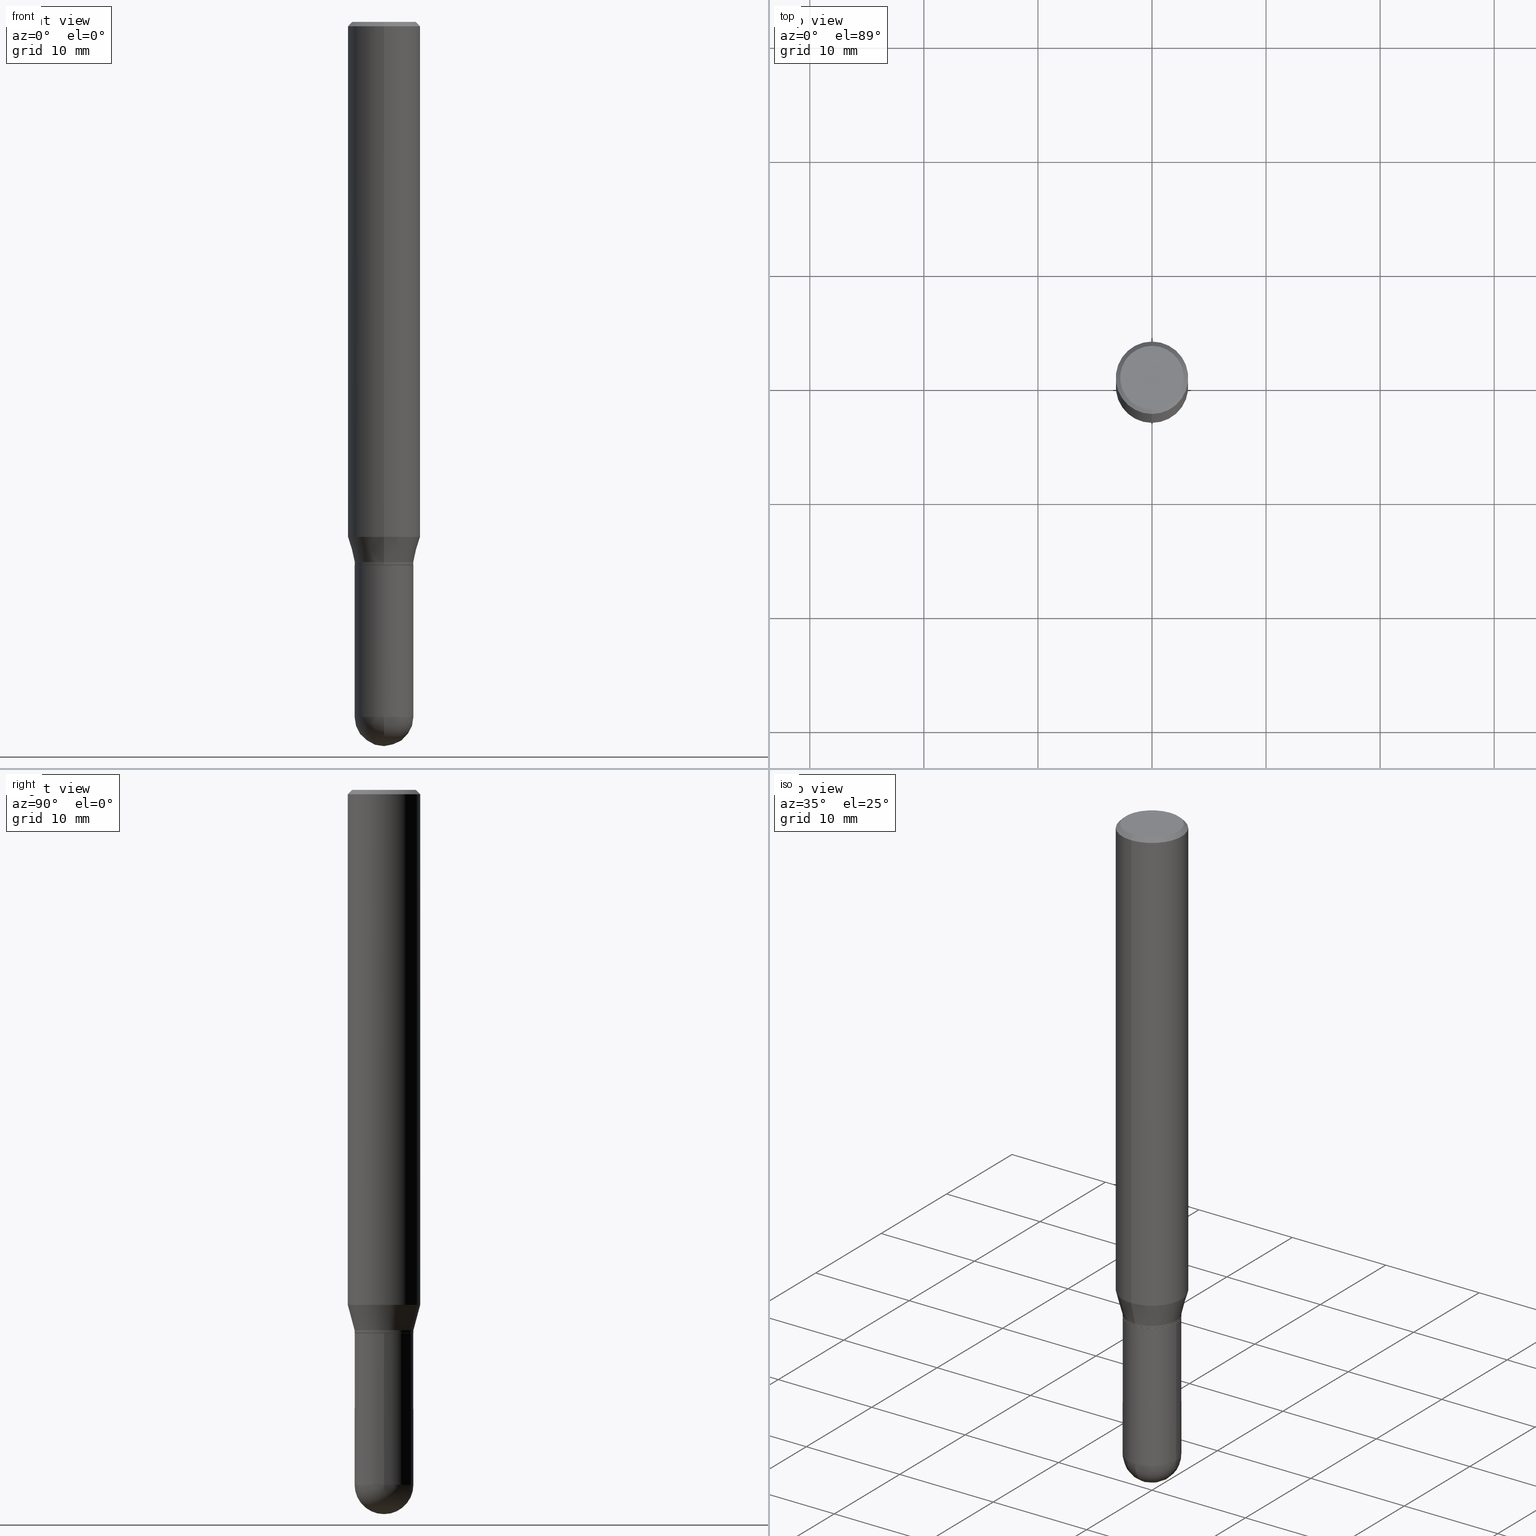
[diagram: canonical four-view strip — front | top / right | iso, engineering-drawing reading convention]
A machine part, canonical four-view strip (front | top / right | iso — engineering-drawing reading convention). The complete STEP part file that produces these views, byte-faithful:
ISO-10303-21;
HEADER;
FILE_DESCRIPTION (( 'STEP AP203' ),
    '1' );
FILE_NAME ('39326.STEP',
    '2024-03-08T12:48:15',
    ( '' ),
    ( '' ),
    'SwSTEP 2.0',
    'SolidWorks 2023',
    '' );
FILE_SCHEMA (( 'CONFIG_CONTROL_DESIGN' ));
ENDSEC;

DATA;
#1 = CARTESIAN_POINT ( 'NONE',  ( -8.575622497214409523E-16, -0.1250000000000000555, -0.01499999999999948597 ) ) ;
#2 = ORIENTED_EDGE ( 'NONE', *, *, #290, .T. ) ;
#3 = DATE_AND_TIME ( #47, #27 ) ;
#4 = ORIENTED_EDGE ( 'NONE', *, *, #400, .T. ) ;
#5 = EDGE_CURVE ( 'NONE', #357, #435, #132, .T. ) ;
#6 = AXIS2_PLACEMENT_3D ( 'NONE', #36, #240, #394 ) ;
#7 = DESIGN_CONTEXT ( 'detailed design', #423, 'design' ) ;
#8 = EDGE_LOOP ( 'NONE', ( #118, #292, #285, #252 ) ) ;
#9 = CARTESIAN_POINT ( 'NONE',  ( 3.667932737261522064E-31, -5.237609339586149413E-17, -0.01499999999999992312 ) ) ;
#10 = COORDINATED_UNIVERSAL_TIME_OFFSET ( 5, 0, .BEHIND. ) ;
#11 = ORIENTED_EDGE ( 'NONE', *, *, #414, .T. ) ;
#12 = LINE ( 'NONE', #492, #318 ) ;
#13 = CYLINDRICAL_SURFACE ( 'NONE', #158, 0.1015499999999999875 ) ;
#14 = CARTESIAN_POINT ( 'NONE',  ( 5.899408758987094508E-29, -8.325347365436315775E-15, -2.398450000000000415 ) ) ;
#15 = AXIS2_PLACEMENT_3D ( 'NONE', #293, #144, #378 ) ;
#16 = EDGE_LOOP ( 'NONE', ( #81, #329 ) ) ;
#17 = CARTESIAN_POINT ( 'NONE',  ( 0.1015500000000000708, -7.255647370249939489E-15, -1.875000000000000000 ) ) ;
#18 = PLANE ( 'NONE',  #150 ) ;
#19 = LINE ( 'NONE', #177, #69 ) ;
#20 = CARTESIAN_POINT ( 'NONE',  ( 6.152088223088502938E-29, -8.673689151273167162E-15, -2.500000000000000000 ) ) ;
#21 = CARTESIAN_POINT ( 'NONE',  ( 7.197797913250275462E-16, 0.1010499999999935339, -1.875000000000000444 ) ) ;
#22 = EDGE_CURVE ( 'NONE', #301, #316, #102, .T. ) ;
#23 = MANIFOLD_SOLID_BREP ( 'Body-Move/Copy2[1]', #509 ) ;
#24 = AXIS2_PLACEMENT_3D ( 'NONE', #258, #336, #454 ) ;
#25 = AXIS2_PLACEMENT_3D ( 'NONE', #418, #187, #182 ) ;
#26 = CARTESIAN_POINT ( 'NONE',  ( 4.346459722803774281E-29, -6.206509134430983691E-15, -1.777483408562510192 ) ) ;
#27 = LOCAL_TIME ( 7, 48, 15.00000000000000000, #165 ) ;
#28 =( CONVERSION_BASED_UNIT ( 'INCH', #374 ) LENGTH_UNIT ( ) NAMED_UNIT ( #113 ) );
#29 = DIRECTION ( 'NONE',  ( -6.982962677686266711E-15, -1.000000000000000000, 2.690150658458161914E-15 ) ) ;
#30 = ADVANCED_FACE ( 'NONE', ( #410 ), #13, .T. ) ;
#31 = CARTESIAN_POINT ( 'NONE',  ( 4.583693277331172338E-29, -6.545265804702859686E-15, -1.874500000000000277 ) ) ;
#32 = MANIFOLD_SOLID_BREP ( 'Body-Move/Copy2[2]', #431 ) ;
#33 = CC_DESIGN_DATE_AND_TIME_ASSIGNMENT ( #93, #496, ( #387 ) ) ;
#34 = VERTEX_POINT ( 'NONE', #138 ) ;
#35 = AXIS2_PLACEMENT_3D ( 'NONE', #446, #266, #56 ) ;
#36 = CARTESIAN_POINT ( 'NONE',  ( -1.856216302434962470E-45, 2.650576370488182261E-31, 7.590991037995984833E-17 ) ) ;
#37 = ORIENTED_EDGE ( 'NONE', *, *, #22, .F. ) ;
#38 = VERTEX_POINT ( 'NONE', #451 ) ;
#39 = LINE ( 'NONE', #88, #469 ) ;
#40 = EDGE_CURVE ( 'NONE', #481, #357, #277, .T. ) ;
#41 = PERSON_AND_ORGANIZATION_ROLE ( 'design_owner' ) ;
#42 = SPHERICAL_SURFACE ( 'NONE', #433, 0.1015499999999999736 ) ;
#43 = ORIENTED_EDGE ( 'NONE', *, *, #466, .T. ) ;
#44 = APPROVAL_ROLE ( '' ) ;
#45 = CARTESIAN_POINT ( 'NONE',  ( 4.584915921576925907E-29, -6.547011674482721378E-15, -1.875000000000000000 ) ) ;
#46 = EDGE_LOOP ( 'NONE', ( #333, #221, #508, #468 ) ) ;
#47 = CALENDAR_DATE ( 2024, 8, 3 ) ;
#48 = EDGE_CURVE ( 'NONE', #174, #491, #271, .T. ) ;
#49 = ORIENTED_EDGE ( 'NONE', *, *, #104, .F. ) ;
#50 = ORIENTED_EDGE ( 'NONE', *, *, #500, .T. ) ;
#51 = DIRECTION ( 'NONE',  ( 4.937700262164543309E-15, 0.7071067811865444641, -0.7071067811865505703 ) ) ;
#52 = CIRCLE ( 'NONE', #160, 0.1015499999999999875 ) ;
#53 = CARTESIAN_POINT ( 'NONE',  ( 0.000000000000000000, 0.000000000000000000, 0.000000000000000000 ) ) ;
#54 = APPROVAL_PERSON_ORGANIZATION ( #438, #480, #44 ) ;
#55 = ORIENTED_EDGE ( 'NONE', *, *, #193, .F. ) ;
#56 = DIRECTION ( 'NONE',  ( 1.000000000000000000, -6.982962677686269866E-15, 0.000000000000000000 ) ) ;
#57 = ADVANCED_FACE ( 'NONE', ( #100 ), #479, .T. ) ;
#58 = ORIENTED_EDGE ( 'NONE', *, *, #489, .T. ) ;
#59 = ORIENTED_EDGE ( 'NONE', *, *, #78, .T. ) ;
#60 = DIRECTION ( 'NONE',  ( -6.982962677686265922E-15, -1.000000000000000000, 2.703461646377299523E-15 ) ) ;
#61 = AXIS2_PLACEMENT_3D ( 'NONE', #420, #303, #456 ) ;
#62 = CIRCLE ( 'NONE', #499, 0.1015499999999999736 ) ;
#63 = DIRECTION ( 'NONE',  ( 1.000000000000000000, -6.982962677686266711E-15, 4.876176775795936353E-29 ) ) ;
#64 = DIRECTION ( 'NONE',  ( -1.000000000000000000, 7.105427357601001070E-15, -4.926315508542082329E-29 ) ) ;
#65 = PRODUCT_DEFINITION ( 'UNKNOWN', '', #238, #7 ) ;
#66 = DIRECTION ( 'NONE',  ( 1.000000000000000000, -6.982962677686258033E-15, 0.000000000000000000 ) ) ;
#67 = APPROVAL_ROLE ( '' ) ;
#68 = DIRECTION ( 'NONE',  ( 2.445288491507693556E-29, -3.491739559724117490E-15, -1.000000000000000000 ) ) ;
#69 = VECTOR ( 'NONE', #384, 39.37007874015748143 ) ;
#70 = CARTESIAN_POINT ( 'NONE',  ( 8.881784197001684225E-16, 0.1249999999999937828, -1.777483408562510858 ) ) ;
#71 = DIRECTION ( 'NONE',  ( 6.982962677686265922E-15, 1.000000000000000000, -3.500180241882337261E-15 ) ) ;
#72 = APPLICATION_PROTOCOL_DEFINITION ( 'international standard', 'config_control_design', 1994, #227 ) ;
#73 = CC_DESIGN_PERSON_AND_ORGANIZATION_ASSIGNMENT ( #447, #264, ( #238 ) ) ;
#74 = FACE_OUTER_BOUND ( 'NONE', #355, .T. ) ;
#75 = VERTEX_POINT ( 'NONE', #20 ) ;
#76 = DIRECTION ( 'NONE',  ( -6.982962677686265922E-15, -1.000000000000000000, 2.703461646377299523E-15 ) ) ;
#77 = ORIENTED_EDGE ( 'NONE', *, *, #462, .T. ) ;
#78 = EDGE_CURVE ( 'NONE', #408, #157, #91, .T. ) ;
#79 = PERSON_AND_ORGANIZATION_ROLE ( 'creator' ) ;
#80 = ORIENTED_EDGE ( 'NONE', *, *, #215, .F. ) ;
#81 = ORIENTED_EDGE ( 'NONE', *, *, #242, .T. ) ;
#82 = CIRCLE ( 'NONE', #15, 0.1250000000000000000 ) ;
#83 = CALENDAR_DATE ( 2024, 8, 3 ) ;
#84 = ADVANCED_FACE ( 'NONE', ( #349 ), #107, .T. ) ;
#85 = VERTEX_POINT ( 'NONE', #149 ) ;
#86 = CC_DESIGN_PERSON_AND_ORGANIZATION_ASSIGNMENT ( #134, #185, ( #387 ) ) ;
#87 = DIRECTION ( 'NONE',  ( -6.982962677686265922E-15, -1.000000000000000000, 2.703461646377299523E-15 ) ) ;
#88 = CARTESIAN_POINT ( 'NONE',  ( 8.728703347107836346E-16, 0.1249999999999999445, -0.01500000000000036027 ) ) ;
#89 = ORIENTED_EDGE ( 'NONE', *, *, #326, .T. ) ;
#90 = DIRECTION ( 'NONE',  ( -2.445288491507693836E-29, 3.491739559724117490E-15, 1.000000000000000000 ) ) ;
#91 = CIRCLE ( 'NONE', #486, 0.1015499999999999875 ) ;
#92 = CIRCLE ( 'NONE', #263, 0.1015500000000000708 ) ;
#93 = DATE_AND_TIME ( #338, #440 ) ;
#94 = CC_DESIGN_APPROVAL ( #419, ( #238 ) ) ;
#95 = CARTESIAN_POINT ( 'NONE',  ( 7.180034344856274914E-16, 0.1010499999999935339, -1.875000000000000444 ) ) ;
#96 = CARTESIAN_POINT ( 'NONE',  ( 7.215561481644268122E-16, 0.1015499999999933678, -1.874500000000000499 ) ) ;
#97 = ADVANCED_FACE ( 'NONE', ( #503 ), #461, .T. ) ;
#98 = DIRECTION ( 'NONE',  ( -2.445288491507693836E-29, 3.491739559724117490E-15, 1.000000000000000000 ) ) ;
#99 = CARTESIAN_POINT ( 'NONE',  ( 0.1015500000000000708, -7.091198599190408807E-16, 4.951757515820776576E-30 ) ) ;
#100 = FACE_OUTER_BOUND ( 'NONE', #430, .T. ) ;
#101 = CARTESIAN_POINT ( 'NONE',  ( 4.346459722803774281E-29, -6.206509134430983691E-15, -1.777483408562510192 ) ) ;
#102 = CIRCLE ( 'NONE', #251, 0.1015500000000000985 ) ;
#103 = AXIS2_PLACEMENT_3D ( 'NONE', #101, #90, #184 ) ;
#104 = EDGE_CURVE ( 'NONE', #435, #85, #110, .T. ) ;
#105 = CARTESIAN_POINT ( 'NONE',  ( -0.1015500000000000708, 7.215561481643822416E-16, -4.995178584153860605E-30 ) ) ;
#106 = DIRECTION ( 'NONE',  ( 1.000000000000000000, -6.982962677686265922E-15, 4.883557194083112340E-29 ) ) ;
#107 = CYLINDRICAL_SURFACE ( 'NONE', #332, 0.1015499999999999875 ) ;
#108 = DIRECTION ( 'NONE',  ( -2.445468806185136597E-29, 3.491481338843145583E-15, 1.000000000000000000 ) ) ;
#109 = EDGE_CURVE ( 'NONE', #38, #161, #311, .T. ) ;
#110 = CIRCLE ( 'NONE', #117, 0.1015499999999999875 ) ;
#111 = VECTOR ( 'NONE', #275, 39.37007874015748143 ) ;
#112 = DIRECTION ( 'NONE',  ( -2.445468806185136597E-29, 3.491481338843145583E-15, 1.000000000000000000 ) ) ;
#113 = DIMENSIONAL_EXPONENTS ( 1.000000000000000000, 0.000000000000000000, 0.000000000000000000, 0.000000000000000000, 0.000000000000000000, 0.000000000000000000, 0.000000000000000000 ) ;
#114 = LINE ( 'NONE', #156, #457 ) ;
#115 = CARTESIAN_POINT ( 'NONE',  ( -0.1015500000000000708, -6.738779315575238500E-15, -1.875000000000000000 ) ) ;
#116 = EDGE_CURVE ( 'NONE', #85, #408, #190, .T. ) ;
#117 = AXIS2_PLACEMENT_3D ( 'NONE', #31, #380, #385 ) ;
#118 = ORIENTED_EDGE ( 'NONE', *, *, #462, .F. ) ;
#119 = AXIS2_PLACEMENT_3D ( 'NONE', #53, #216, #286 ) ;
#120 = PERSON_AND_ORGANIZATION ( #494, #426 ) ;
#121 = DIRECTION ( 'NONE',  ( -2.445288491507693836E-29, 3.491739559724117490E-15, 1.000000000000000000 ) ) ;
#122 = ORIENTED_EDGE ( 'NONE', *, *, #363, .F. ) ;
#123 = CARTESIAN_POINT ( 'NONE',  ( 4.560463036661848921E-29, -6.512094278885478870E-15, -1.864999999999999991 ) ) ;
#124 = EDGE_LOOP ( 'NONE', ( #364, #392, #126, #239 ) ) ;
#125 = ADVANCED_FACE ( 'NONE', ( #273 ), #502, .F. ) ;
#126 = ORIENTED_EDGE ( 'NONE', *, *, #388, .F. ) ;
#127 = CIRCLE ( 'NONE', #287, 0.1015499999999999875 ) ;
#128 = ORIENTED_EDGE ( 'NONE', *, *, #388, .T. ) ;
#129 = ORIENTED_EDGE ( 'NONE', *, *, #48, .F. ) ;
#130 = CARTESIAN_POINT ( 'NONE',  ( 5.899408758987094508E-29, -8.325347365436315775E-15, -2.398450000000000415 ) ) ;
#131 = ADVANCED_FACE ( 'NONE', ( #465 ), #346, .T. ) ;
#132 = LINE ( 'NONE', #95, #358 ) ;
#133 = CIRCLE ( 'NONE', #399, 0.1015500000000000985 ) ;
#134 = PERSON_AND_ORGANIZATION ( #494, #426 ) ;
#135 = CC_DESIGN_APPROVAL ( #480, ( #65 ) ) ;
#136 = DIRECTION ( 'NONE',  ( -2.445468806185136597E-29, 3.491481338843145583E-15, 1.000000000000000000 ) ) ;
#137 = DIRECTION ( 'NONE',  ( 1.000000000000000000, -6.982962677686269866E-15, 0.000000000000000000 ) ) ;
#138 = CARTESIAN_POINT ( 'NONE',  ( 8.881784197001688169E-16, 0.1249999999999999306, -0.01500000000000036027 ) ) ;
#139 = FACE_OUTER_BOUND ( 'NONE', #315, .T. ) ;
#140 = DIRECTION ( 'NONE',  ( -6.982962677686266711E-15, -1.000000000000000000, 2.690150658458161914E-15 ) ) ;
#141 = EDGE_CURVE ( 'NONE', #199, #206, #225, .T. ) ;
#142 = UNCERTAINTY_MEASURE_WITH_UNIT (LENGTH_MEASURE( 1.000000000000000082E-05 ), #28, 'distance_accuracy_value', 'NONE');
#143 = CARTESIAN_POINT ( 'NONE',  ( -7.056283785801518238E-16, -0.1010500000000066068, -1.874999999999999778 ) ) ;
#144 = DIRECTION ( 'NONE',  ( -2.445288491507693836E-29, 3.491739559724117490E-15, 1.000000000000000000 ) ) ;
#145 = SECURITY_CLASSIFICATION_LEVEL ( 'unclassified' ) ;
#146 = CIRCLE ( 'NONE', #6, 0.1100000000000000283 ) ;
#147 = CARTESIAN_POINT ( 'NONE',  ( 7.681258945454894762E-16, 0.1100000000000000283, -3.461363963796731015E-16 ) ) ;
#148 = CARTESIAN_POINT ( 'NONE',  ( 8.048672839322978639E-16, 0.1015499999999934788, -1.865000000000000213 ) ) ;
#149 = CARTESIAN_POINT ( 'NONE',  ( -7.091198599189950281E-16, -0.1015500000000066211, -1.874499999999999833 ) ) ;
#150 = AXIS2_PLACEMENT_3D ( 'NONE', #147, #68, #343 ) ;
#151 = DIRECTION ( 'NONE',  ( -2.445288491507693556E-29, 3.491739559724117490E-15, 1.000000000000000000 ) ) ;
#152 = VECTOR ( 'NONE', #409, 39.37007874015748143 ) ;
#153 = DIRECTION ( 'NONE',  ( 6.982962677686266711E-15, 1.000000000000000000, -2.690150658458162309E-15 ) ) ;
#154 = ORIENTED_EDGE ( 'NONE', *, *, #193, .T. ) ;
#155 = ADVANCED_FACE ( 'NONE', ( #415 ), #18, .F. ) ;
#156 = CARTESIAN_POINT ( 'NONE',  ( 8.881784197001251337E-16, 0.1250000000000000000, -4.364674449655146862E-16 ) ) ;
#157 = VERTEX_POINT ( 'NONE', #148 ) ;
#158 = AXIS2_PLACEMENT_3D ( 'NONE', #365, #180, #298 ) ;
#159 = FACE_OUTER_BOUND ( 'NONE', #370, .T. ) ;
#160 = AXIS2_PLACEMENT_3D ( 'NONE', #267, #424, #362 ) ;
#161 = VERTEX_POINT ( 'NONE', #70 ) ;
#162 = EDGE_CURVE ( 'NONE', #157, #161, #234, .T. ) ;
#163 = ORIENTED_EDGE ( 'NONE', *, *, #356, .F. ) ;
#164 = DIRECTION ( 'NONE',  ( -6.982962677686266711E-15, -1.000000000000000000, 2.690150658458161914E-15 ) ) ;
#165 = COORDINATED_UNIVERSAL_TIME_OFFSET ( 5, 0, .BEHIND. ) ;
#166 = ORIENTED_EDGE ( 'NONE', *, *, #381, .F. ) ;
#167 = APPROVAL_DATE_TIME ( #3, #419 ) ;
#168 = ORIENTED_EDGE ( 'NONE', *, *, #162, .T. ) ;
#169 = APPROVAL_PERSON_ORGANIZATION ( #379, #427, #67 ) ;
#170 = PRODUCT_DEFINITION_SHAPE ( 'NONE', 'NONE',  #65 ) ;
#171 = ORIENTED_EDGE ( 'NONE', *, *, #466, .F. ) ;
#172 = DIRECTION ( 'NONE',  ( 6.982962677686265922E-15, 1.000000000000000000, -3.500180241882337261E-15 ) ) ;
#173 = ADVANCED_FACE ( 'NONE', ( #194 ), #205, .T. ) ;
#174 = VERTEX_POINT ( 'NONE', #463 ) ;
#175 = PLANE ( 'NONE',  #253 ) ;
#176 = ORIENTED_EDGE ( 'NONE', *, *, #141, .T. ) ;
#177 = CARTESIAN_POINT ( 'NONE',  ( -7.091198599189946337E-16, -0.1015500000000064962, -1.864999999999999547 ) ) ;
#178 = AXIS2_PLACEMENT_3D ( 'NONE', #268, #108, #63 ) ;
#179 = CIRCLE ( 'NONE', #245, 0.1015500000000000985 ) ;
#180 = DIRECTION ( 'NONE',  ( -2.445288491507693836E-29, 3.491739559724117490E-15, 1.000000000000000000 ) ) ;
#181 = EDGE_CURVE ( 'NONE', #481, #85, #493, .T. ) ;
#182 = DIRECTION ( 'NONE',  ( 1.000000000000000000, -6.982962677686258033E-15, 0.000000000000000000 ) ) ;
#183 = DIRECTION ( 'NONE',  ( -2.445288491507693836E-29, 3.491739559724117490E-15, 1.000000000000000000 ) ) ;
#184 = DIRECTION ( 'NONE',  ( -6.982962677686265922E-15, -1.000000000000000000, 4.370956789862821150E-15 ) ) ;
#185 = PERSON_AND_ORGANIZATION_ROLE ( 'classification_officer' ) ;
#186 = DIRECTION ( 'NONE',  ( -4.937700262164631661E-15, -0.7071067811865571207, 0.7071067811865379138 ) ) ;
#187 = DIRECTION ( 'NONE',  ( -2.445468806185136597E-29, 3.491481338843145583E-15, 1.000000000000000000 ) ) ;
#188 = AXIS2_PLACEMENT_3D ( 'NONE', #291, #98, #87 ) ;
#189 = AXIS2_PLACEMENT_3D ( 'NONE', #218, #413, #60 ) ;
#190 = LINE ( 'NONE', #265, #334 ) ;
#191 = PRODUCT ( '39326', '39326', '', ( #211 ) ) ;
#192 =( NAMED_UNIT ( * ) PLANE_ANGLE_UNIT ( ) SI_UNIT ( $, .RADIAN. ) );
#193 = EDGE_CURVE ( 'NONE', #34, #436, #504, .T. ) ;
#194 = FACE_OUTER_BOUND ( 'NONE', #196, .T. ) ;
#195 = CARTESIAN_POINT ( 'NONE',  ( 7.091198599190867332E-16, 0.1015499999999935343, -1.875000000000000444 ) ) ;
#196 = EDGE_LOOP ( 'NONE', ( #129, #398, #4, #241 ) ) ;
#197 = ADVANCED_BREP_SHAPE_REPRESENTATION ( '39326', ( #23, #32, #119 ), #360 ) ;
#198 = ADVANCED_FACE ( 'NONE', ( #235 ), #308, .T. ) ;
#199 = VERTEX_POINT ( 'NONE', #228 ) ;
#200 = ORIENTED_EDGE ( 'NONE', *, *, #414, .F. ) ;
#201 = CARTESIAN_POINT ( 'NONE',  ( 0.1015500000000000985, -8.169455323658661228E-15, -2.398450000000000415 ) ) ;
#202 = CALENDAR_DATE ( 2024, 8, 3 ) ;
#203 = ADVANCED_FACE ( 'NONE', ( #282 ), #497, .T. ) ;
#204 = CARTESIAN_POINT ( 'NONE',  ( 5.899408758987094508E-29, -8.325347365436315775E-15, -2.398450000000000415 ) ) ;
#205 = CONICAL_SURFACE ( 'NONE', #213, 0.1250000000000000000, 0.7853981633974473908 ) ;
#206 = VERTEX_POINT ( 'NONE', #115 ) ;
#207 = APPROVAL_ROLE ( '' ) ;
#208 = ORIENTED_EDGE ( 'NONE', *, *, #141, .F. ) ;
#209 = EDGE_LOOP ( 'NONE', ( #11, #354 ) ) ;
#210 = FACE_OUTER_BOUND ( 'NONE', #361, .T. ) ;
#211 = MECHANICAL_CONTEXT ( 'NONE', #227, 'mechanical' ) ;
#212 = ORIENTED_EDGE ( 'NONE', *, *, #347, .T. ) ;
#213 = AXIS2_PLACEMENT_3D ( 'NONE', #310, #339, #71 ) ;
#214 = DIRECTION ( 'NONE',  ( -2.445288491507693836E-29, 3.491739559724117490E-15, 1.000000000000000000 ) ) ;
#215 = EDGE_CURVE ( 'NONE', #174, #436, #434, .T. ) ;
#216 = DIRECTION ( 'NONE',  ( 0.000000000000000000, 0.000000000000000000, 1.000000000000000000 ) ) ;
#217 = EDGE_LOOP ( 'NONE', ( #2, #77, #322, #276 ) ) ;
#218 = CARTESIAN_POINT ( 'NONE',  ( 4.584915921576925907E-29, -6.547011674482721378E-15, -1.875000000000000000 ) ) ;
#219 = VERTEX_POINT ( 'NONE', #429 ) ;
#220 = EDGE_CURVE ( 'NONE', #161, #34, #114, .T. ) ;
#221 = ORIENTED_EDGE ( 'NONE', *, *, #220, .T. ) ;
#222 = DIRECTION ( 'NONE',  ( -2.445468806185136597E-29, 3.491481338843145583E-15, 1.000000000000000000 ) ) ;
#223 = AXIS2_PLACEMENT_3D ( 'NONE', #26, #270, #309 ) ;
#224 = CC_DESIGN_SECURITY_CLASSIFICATION ( #387, ( #238 ) ) ;
#225 = LINE ( 'NONE', #105, #439 ) ;
#226 = LINE ( 'NONE', #254, #152 ) ;
#227 = APPLICATION_CONTEXT ( 'configuration controlled 3d designs of mechanical parts and assemblies' ) ;
#228 = CARTESIAN_POINT ( 'NONE',  ( -0.1015500000000000985, -6.738779315575238500E-15, -2.398450000000000415 ) ) ;
#229 = CARTESIAN_POINT ( 'NONE',  ( 4.585254011597131119E-29, -6.546527510330898707E-15, -1.875000000000000000 ) ) ;
#230 = CARTESIAN_POINT ( 'NONE',  ( 4.560463036661848921E-29, -6.512094278885478870E-15, -1.864999999999999991 ) ) ;
#231 = AXIS2_PLACEMENT_3D ( 'NONE', #442, #112, #390 ) ;
#232 = AXIS2_PLACEMENT_3D ( 'NONE', #353, #506, #153 ) ;
#233 = CONICAL_SURFACE ( 'NONE', #189, 0.1010500000000000703, 0.7853981633974653764 ) ;
#234 = LINE ( 'NONE', #389, #272 ) ;
#235 = FACE_OUTER_BOUND ( 'NONE', #124, .T. ) ;
#236 = ADVANCED_FACE ( 'NONE', ( #74 ), #278, .T. ) ;
#237 = DIRECTION ( 'NONE',  ( -2.445288491507693836E-29, 3.491739559724117490E-15, 1.000000000000000000 ) ) ;
#238 = PRODUCT_DEFINITION_FORMATION_WITH_SPECIFIED_SOURCE ( 'ANY', '', #191, .NOT_KNOWN. ) ;
#239 = ORIENTED_EDGE ( 'NONE', *, *, #372, .F. ) ;
#240 = DIRECTION ( 'NONE',  ( -2.445288491507693836E-29, 3.491739559724117490E-15, 1.000000000000000000 ) ) ;
#241 = ORIENTED_EDGE ( 'NONE', *, *, #326, .F. ) ;
#242 = EDGE_CURVE ( 'NONE', #491, #174, #146, .T. ) ;
#243 = COORDINATED_UNIVERSAL_TIME_OFFSET ( 5, 0, .BEHIND. ) ;
#244 = DATE_TIME_ROLE ( 'creation_date' ) ;
#245 = AXIS2_PLACEMENT_3D ( 'NONE', #335, #452, #482 ) ;
#246 = ORIENTED_EDGE ( 'NONE', *, *, #242, .F. ) ;
#247 = APPLICATION_PROTOCOL_DEFINITION ( 'international standard', 'config_control_design', 1994, #423 ) ;
#248 = ORIENTED_EDGE ( 'NONE', *, *, #109, .F. ) ;
#249 = CC_DESIGN_PERSON_AND_ORGANIZATION_ASSIGNMENT ( #284, #41, ( #191 ) ) ;
#250 = ORIENTED_EDGE ( 'NONE', *, *, #220, .F. ) ;
#251 = AXIS2_PLACEMENT_3D ( 'NONE', #445, #136, #256 ) ;
#252 = ORIENTED_EDGE ( 'NONE', *, *, #274, .F. ) ;
#253 = AXIS2_PLACEMENT_3D ( 'NONE', #411, #459, #331 ) ;
#254 = CARTESIAN_POINT ( 'NONE',  ( 7.215561481643815513E-16, 0.1015499999999999875, -3.545861522899840872E-16 ) ) ;
#255 = SHAPE_DEFINITION_REPRESENTATION ( #170, #197 ) ;
#256 = DIRECTION ( 'NONE',  ( 1.000000000000000000, -6.982962677686258033E-15, 0.000000000000000000 ) ) ;
#257 = DIRECTION ( 'NONE',  ( -2.445288491507693556E-29, 3.491739559724117490E-15, 1.000000000000000000 ) ) ;
#258 = CARTESIAN_POINT ( 'NONE',  ( -1.856216302434962470E-45, 2.650576370488182261E-31, 7.590991037995984833E-17 ) ) ;
#259 = FACE_OUTER_BOUND ( 'NONE', #405, .T. ) ;
#260 = DATE_AND_TIME ( #483, #312 ) ;
#261 = DIRECTION ( 'NONE',  ( -6.982962677686265922E-15, -1.000000000000000000, 3.491739559724117490E-15 ) ) ;
#262 = CARTESIAN_POINT ( 'NONE',  ( 8.204981146281365554E-16, 0.1100000000000000283, -3.081814411896931095E-16 ) ) ;
#263 = AXIS2_PLACEMENT_3D ( 'NONE', #229, #222, #137 ) ;
#264 = PERSON_AND_ORGANIZATION_ROLE ( 'creator' ) ;
#265 = CARTESIAN_POINT ( 'NONE',  ( -7.091198599190402890E-16, -0.1015499999999999875, 3.545861522899840872E-16 ) ) ;
#266 = DIRECTION ( 'NONE',  ( -2.445468806185136597E-29, 3.491481338843145583E-15, 1.000000000000000000 ) ) ;
#267 = CARTESIAN_POINT ( 'NONE',  ( 4.583693277331172338E-29, -6.545265804702859686E-15, -1.874500000000000277 ) ) ;
#268 = CARTESIAN_POINT ( 'NONE',  ( 0.000000000000000000, 0.000000000000000000, 0.000000000000000000 ) ) ;
#269 = ADVANCED_FACE ( 'NONE', ( #159 ), #42, .T. ) ;
#270 = DIRECTION ( 'NONE',  ( -2.445288491507693836E-29, 3.491739559724117490E-15, 1.000000000000000000 ) ) ;
#271 = CIRCLE ( 'NONE', #24, 0.1100000000000000283 ) ;
#272 = VECTOR ( 'NONE', #498, 39.37007874015748143 ) ;
#273 = FACE_OUTER_BOUND ( 'NONE', #209, .T. ) ;
#274 = EDGE_CURVE ( 'NONE', #157, #408, #127, .T. ) ;
#275 = DIRECTION ( 'NONE',  ( -4.851104656540959542E-15, -0.7071067811865493491, -0.7071067811865456854 ) ) ;
#276 = ORIENTED_EDGE ( 'NONE', *, *, #116, .F. ) ;
#277 = CIRCLE ( 'NONE', #188, 0.1010500000000000703 ) ;
#278 = CONICAL_SURFACE ( 'NONE', #305, 0.1015499999999999875, 0.2617993877991511287 ) ;
#279 = VECTOR ( 'NONE', #304, 39.37007874015748143 ) ;
#280 = ORIENTED_EDGE ( 'NONE', *, *, #489, .F. ) ;
#281 = FACE_OUTER_BOUND ( 'NONE', #46, .T. ) ;
#282 = FACE_OUTER_BOUND ( 'NONE', #366, .T. ) ;
#283 = EDGE_LOOP ( 'NONE', ( #250, #330, #50, #55 ) ) ;
#284 = PERSON_AND_ORGANIZATION ( #494, #426 ) ;
#285 = ORIENTED_EDGE ( 'NONE', *, *, #116, .T. ) ;
#286 = DIRECTION ( 'NONE',  ( 1.000000000000000000, 0.000000000000000000, 0.000000000000000000 ) ) ;
#287 = AXIS2_PLACEMENT_3D ( 'NONE', #123, #121, #140 ) ;
#288 = ORIENTED_EDGE ( 'NONE', *, *, #181, .T. ) ;
#289 = LOCAL_TIME ( 7, 48, 15.00000000000000000, #10 ) ;
#290 = EDGE_CURVE ( 'NONE', #85, #435, #52, .T. ) ;
#291 = CARTESIAN_POINT ( 'NONE',  ( 4.584915921576925907E-29, -6.547011674482721378E-15, -1.875000000000000000 ) ) ;
#292 = ORIENTED_EDGE ( 'NONE', *, *, #104, .T. ) ;
#293 = CARTESIAN_POINT ( 'NONE',  ( 3.667932737261522064E-31, -5.237609339586149413E-17, -0.01499999999999992312 ) ) ;
#294 = EDGE_LOOP ( 'NONE', ( #80, #246, #89, #154 ) ) ;
#295 = ADVANCED_FACE ( 'NONE', ( #281 ), #475, .T. ) ;
#296 =( LENGTH_UNIT ( ) NAMED_UNIT ( * ) SI_UNIT ( $, .METRE. ) );
#297 = PERSON_AND_ORGANIZATION_ROLE ( 'design_supplier' ) ;
#298 = DIRECTION ( 'NONE',  ( -6.982962677686266711E-15, -1.000000000000000000, 3.491739559724117490E-15 ) ) ;
#299 = DIRECTION ( 'NONE',  ( 6.982962677686266711E-15, 1.000000000000000000, 0.000000000000000000 ) ) ;
#300 = PRODUCT_RELATED_PRODUCT_CATEGORY ( 'detail', '', ( #191 ) ) ;
#301 = VERTEX_POINT ( 'NONE', #477 ) ;
#302 = CARTESIAN_POINT ( 'NONE',  ( 5.865334658194741045E-29, -8.374143417148343763E-15, -2.398450000000000415 ) ) ;
#303 = DIRECTION ( 'NONE',  ( -2.445288491507693836E-29, 3.491739559724117490E-15, 1.000000000000000000 ) ) ;
#304 = DIRECTION ( 'NONE',  ( -2.445468806185136877E-29, 3.491481338843145188E-15, 1.000000000000000000 ) ) ;
#305 = AXIS2_PLACEMENT_3D ( 'NONE', #473, #237, #391 ) ;
#306 = APPROVAL_DATE_TIME ( #260, #427 ) ;
#307 = CC_DESIGN_DATE_AND_TIME_ASSIGNMENT ( #511, #244, ( #65 ) ) ;
#308 = SPHERICAL_SURFACE ( 'NONE', #232, 0.1015499999999999736 ) ;
#309 = DIRECTION ( 'NONE',  ( -6.982962677686265922E-15, -1.000000000000000000, 4.370956789862821150E-15 ) ) ;
#310 = CARTESIAN_POINT ( 'NONE',  ( 3.667932737261522064E-31, -5.237609339586149413E-17, -0.01499999999999992312 ) ) ;
#311 = CIRCLE ( 'NONE', #223, 0.1250000000000000000 ) ;
#312 = LOCAL_TIME ( 7, 48, 15.00000000000000000, #375 ) ;
#313 = CARTESIAN_POINT ( 'NONE',  ( 0.000000000000000000, 0.000000000000000000, 0.000000000000000000 ) ) ;
#314 = DIRECTION ( 'NONE',  ( -2.445288491507693836E-29, 3.491739559724117490E-15, 1.000000000000000000 ) ) ;
#315 = EDGE_LOOP ( 'NONE', ( #404, #280 ) ) ;
#316 = VERTEX_POINT ( 'NONE', #201 ) ;
#317 = AXIS2_PLACEMENT_3D ( 'NONE', #14, #106, #299 ) ;
#318 = VECTOR ( 'NONE', #257, 39.37007874015748143 ) ;
#319 = ADVANCED_FACE ( 'NONE', ( #210 ), #345, .T. ) ;
#320 = APPROVAL_STATUS ( 'not_yet_approved' ) ;
#321 = DIRECTION ( 'NONE',  ( 6.982962677686266711E-15, 1.000000000000000000, -2.690150658458162309E-15 ) ) ;
#322 = ORIENTED_EDGE ( 'NONE', *, *, #78, .F. ) ;
#323 = DIRECTION ( 'NONE',  ( 2.445288491507693836E-29, -3.491739559724117490E-15, -1.000000000000000000 ) ) ;
#324 = APPROVAL_DATE_TIME ( #470, #480 ) ;
#325 = DIRECTION ( 'NONE',  ( -6.982962677686265922E-15, -1.000000000000000000, 3.491739559724117490E-15 ) ) ;
#326 = EDGE_CURVE ( 'NONE', #491, #34, #39, .T. ) ;
#327 = CIRCLE ( 'NONE', #103, 0.1250000000000000000 ) ;
#328 = DIRECTION ( 'NONE',  ( 5.024295867788147587E-15, 0.7071067811865620056, 0.7071067811865330288 ) ) ;
#329 = ORIENTED_EDGE ( 'NONE', *, *, #48, .T. ) ;
#330 = ORIENTED_EDGE ( 'NONE', *, *, #444, .T. ) ;
#331 = DIRECTION ( 'NONE',  ( -6.982962677686265922E-15, -1.000000000000000000, 3.491739559724117490E-15 ) ) ;
#332 = AXIS2_PLACEMENT_3D ( 'NONE', #313, #183, #348 ) ;
#333 = ORIENTED_EDGE ( 'NONE', *, *, #109, .T. ) ;
#334 = VECTOR ( 'NONE', #151, 39.37007874015748143 ) ;
#335 = CARTESIAN_POINT ( 'NONE',  ( 5.865334658194741045E-29, -8.374143417148343763E-15, -2.398450000000000415 ) ) ;
#336 = DIRECTION ( 'NONE',  ( -2.445288491507693836E-29, 3.491739559724117490E-15, 1.000000000000000000 ) ) ;
#337 = CARTESIAN_POINT ( 'NONE',  ( -7.056283785801518238E-16, -0.1010500000000066068, -1.874999999999999778 ) ) ;
#338 = CALENDAR_DATE ( 2024, 8, 3 ) ;
#339 = DIRECTION ( 'NONE',  ( 2.445288491507693836E-29, -3.491739559724117490E-15, -1.000000000000000000 ) ) ;
#340 = LINE ( 'NONE', #99, #279 ) ;
#341 = COORDINATED_UNIVERSAL_TIME_OFFSET ( 5, 0, .BEHIND. ) ;
#342 = ADVANCED_FACE ( 'NONE', ( #368 ), #351, .T. ) ;
#343 = DIRECTION ( 'NONE',  ( 6.982962677686265922E-15, 1.000000000000000000, -3.491739559724117490E-15 ) ) ;
#344 =( NAMED_UNIT ( * ) SI_UNIT ( $, .STERADIAN. ) SOLID_ANGLE_UNIT ( ) );
#345 = CONICAL_SURFACE ( 'NONE', #416, 0.1015499999999999875, 0.2617993877991511287 ) ;
#346 = CYLINDRICAL_SURFACE ( 'NONE', #432, 0.1250000000000000000 ) ;
#347 = EDGE_CURVE ( 'NONE', #75, #219, #478, .T. ) ;
#348 = DIRECTION ( 'NONE',  ( -6.982962677686266711E-15, -1.000000000000000000, 3.491739559724117490E-15 ) ) ;
#349 = FACE_OUTER_BOUND ( 'NONE', #217, .T. ) ;
#350 = CC_DESIGN_PERSON_AND_ORGANIZATION_ASSIGNMENT ( #485, #297, ( #238 ) ) ;
#351 = CONICAL_SURFACE ( 'NONE', #359, 0.1250000000000000000, 0.7853981633974473908 ) ;
#352 = LOCAL_TIME ( 7, 48, 15.00000000000000000, #243 ) ;
#353 = CARTESIAN_POINT ( 'NONE',  ( 5.899408758987094508E-29, -8.325347365436315775E-15, -2.398450000000000415 ) ) ;
#354 = ORIENTED_EDGE ( 'NONE', *, *, #381, .T. ) ;
#355 = EDGE_LOOP ( 'NONE', ( #402, #437, #484, #448 ) ) ;
#356 = EDGE_CURVE ( 'NONE', #408, #38, #19, .T. ) ;
#357 = VERTEX_POINT ( 'NONE', #21 ) ;
#358 = VECTOR ( 'NONE', #328, 39.37007874015748143 ) ;
#359 = AXIS2_PLACEMENT_3D ( 'NONE', #9, #323, #172 ) ;
#360 =( GEOMETRIC_REPRESENTATION_CONTEXT ( 3 ) GLOBAL_UNCERTAINTY_ASSIGNED_CONTEXT ( ( #142 ) ) GLOBAL_UNIT_ASSIGNED_CONTEXT ( ( #28, #192, #344 ) ) REPRESENTATION_CONTEXT ( 'NONE', 'WORKASPACE' ) );
#361 = EDGE_LOOP ( 'NONE', ( #59, #168, #248, #163 ) ) ;
#362 = DIRECTION ( 'NONE',  ( -6.982962677686266711E-15, -1.000000000000000000, 2.690150658458161914E-15 ) ) ;
#363 = EDGE_CURVE ( 'NONE', #316, #219, #133, .T. ) ;
#364 = ORIENTED_EDGE ( 'NONE', *, *, #347, .F. ) ;
#365 = CARTESIAN_POINT ( 'NONE',  ( 0.000000000000000000, 0.000000000000000000, 0.000000000000000000 ) ) ;
#366 = EDGE_LOOP ( 'NONE', ( #441, #507, #474, #488 ) ) ;
#367 = APPROVAL_PERSON_ORGANIZATION ( #403, #419, #207 ) ;
#368 = FACE_OUTER_BOUND ( 'NONE', #294, .T. ) ;
#369 = APPROVAL_STATUS ( 'not_yet_approved' ) ;
#370 = EDGE_LOOP ( 'NONE', ( #472, #212, #122, #37 ) ) ;
#371 = DIRECTION ( 'NONE',  ( -2.445288491507693836E-29, 3.491739559724117490E-15, 1.000000000000000000 ) ) ;
#372 = EDGE_CURVE ( 'NONE', #219, #199, #464, .T. ) ;
#373 = ORIENTED_EDGE ( 'NONE', *, *, #372, .T. ) ;
#374 = LENGTH_MEASURE_WITH_UNIT ( LENGTH_MEASURE( 0.02539999999999999897 ), #296 );
#375 = COORDINATED_UNIVERSAL_TIME_OFFSET ( 5, 0, .BEHIND. ) ;
#376 = ORIENTED_EDGE ( 'NONE', *, *, #22, .T. ) ;
#377 = CIRCLE ( 'NONE', #35, 0.1015500000000000708 ) ;
#378 = DIRECTION ( 'NONE',  ( -6.982962677686265922E-15, -1.000000000000000000, 3.500180241882337261E-15 ) ) ;
#379 = PERSON_AND_ORGANIZATION ( #494, #426 ) ;
#380 = DIRECTION ( 'NONE',  ( -2.445288491507693836E-29, 3.491739559724117490E-15, 1.000000000000000000 ) ) ;
#381 = EDGE_CURVE ( 'NONE', #206, #467, #92, .T. ) ;
#382 = DIRECTION ( 'NONE',  ( -7.105427357601001070E-15, -1.000000000000000000, 0.000000000000000000 ) ) ;
#383 = DIRECTION ( 'NONE',  ( -1.000000000000000000, 6.982962677686265922E-15, -4.876176775795935793E-29 ) ) ;
#384 = DIRECTION ( 'NONE',  ( -1.807323732225336056E-15, -0.2588190451025190186, 0.9659258262890687563 ) ) ;
#385 = DIRECTION ( 'NONE',  ( -6.982962677686266711E-15, -1.000000000000000000, 2.690150658458161914E-15 ) ) ;
#386 = VECTOR ( 'NONE', #186, 39.37007874015748143 ) ;
#387 = SECURITY_CLASSIFICATION ( '', '', #145 ) ;
#388 = EDGE_CURVE ( 'NONE', #199, #301, #179, .T. ) ;
#389 = CARTESIAN_POINT ( 'NONE',  ( 7.215561481644272066E-16, 0.1015499999999934788, -1.865000000000000213 ) ) ;
#390 = DIRECTION ( 'NONE',  ( 1.000000000000000000, -6.982962677686266711E-15, 4.876176775795936353E-29 ) ) ;
#391 = DIRECTION ( 'NONE',  ( -6.982962677686266711E-15, -1.000000000000000000, 2.690150658458161914E-15 ) ) ;
#392 = ORIENTED_EDGE ( 'NONE', *, *, #453, .T. ) ;
#393 = CC_DESIGN_PERSON_AND_ORGANIZATION_ASSIGNMENT ( #120, #79, ( #65 ) ) ;
#394 = DIRECTION ( 'NONE',  ( -6.982962677686265922E-15, -1.000000000000000000, 3.491739559724117490E-15 ) ) ;
#395 = ORIENTED_EDGE ( 'NONE', *, *, #5, .F. ) ;
#396 = CARTESIAN_POINT ( 'NONE',  ( 0.000000000000000000, 0.000000000000000000, 0.000000000000000000 ) ) ;
#397 = DIRECTION ( 'NONE',  ( -2.445288491507693556E-29, 3.491739559724117490E-15, 1.000000000000000000 ) ) ;
#398 = ORIENTED_EDGE ( 'NONE', *, *, #215, .T. ) ;
#399 = AXIS2_PLACEMENT_3D ( 'NONE', #302, #455, #66 ) ;
#400 = EDGE_CURVE ( 'NONE', #436, #34, #82, .T. ) ;
#401 = CIRCLE ( 'NONE', #458, 0.1010500000000000703 ) ;
#402 = ORIENTED_EDGE ( 'NONE', *, *, #162, .F. ) ;
#403 = PERSON_AND_ORGANIZATION ( #494, #426 ) ;
#404 = ORIENTED_EDGE ( 'NONE', *, *, #40, .F. ) ;
#405 = EDGE_LOOP ( 'NONE', ( #395, #58, #288, #49 ) ) ;
#406 = DIRECTION ( 'NONE',  ( -2.445288491507693836E-29, 3.491739559724117490E-15, 1.000000000000000000 ) ) ;
#407 = AXIS2_PLACEMENT_3D ( 'NONE', #45, #314, #76 ) ;
#408 = VERTEX_POINT ( 'NONE', #449 ) ;
#409 = DIRECTION ( 'NONE',  ( -2.445288491507693556E-29, 3.491739559724117490E-15, 1.000000000000000000 ) ) ;
#410 = FACE_OUTER_BOUND ( 'NONE', #8, .T. ) ;
#411 = CARTESIAN_POINT ( 'NONE',  ( 4.584915921576925907E-29, -6.547011674482721378E-15, -1.875000000000000000 ) ) ;
#412 = EDGE_LOOP ( 'NONE', ( #373, #176, #200, #171, #476 ) ) ;
#413 = DIRECTION ( 'NONE',  ( -2.445288491507693836E-29, 3.491739559724117490E-15, 1.000000000000000000 ) ) ;
#414 = EDGE_CURVE ( 'NONE', #467, #206, #377, .T. ) ;
#415 = FACE_OUTER_BOUND ( 'NONE', #16, .T. ) ;
#416 = AXIS2_PLACEMENT_3D ( 'NONE', #443, #406, #164 ) ;
#417 = CC_DESIGN_APPROVAL ( #427, ( #387 ) ) ;
#418 = CARTESIAN_POINT ( 'NONE',  ( 5.865334658194741045E-29, -8.374143417148343763E-15, -2.398450000000000415 ) ) ;
#419 = APPROVAL ( #320, 'UNSPECIFIED' ) ;
#420 = CARTESIAN_POINT ( 'NONE',  ( 3.667932737261522064E-31, -5.237609339586149413E-17, -0.01499999999999992312 ) ) ;
#421 = CARTESIAN_POINT ( 'NONE',  ( 4.584915921576925907E-29, -6.547011674482721378E-15, -1.875000000000000000 ) ) ;
#422 = DIRECTION ( 'NONE',  ( -2.445468806185136877E-29, 3.491481338843145188E-15, 1.000000000000000000 ) ) ;
#423 = APPLICATION_CONTEXT ( 'configuration controlled 3d designs of mechanical parts and assemblies' ) ;
#424 = DIRECTION ( 'NONE',  ( -2.445288491507693836E-29, 3.491739559724117490E-15, 1.000000000000000000 ) ) ;
#425 = DIRECTION ( 'NONE',  ( 2.438088387897960049E-29, -3.491481338843145188E-15, -1.000000000000000000 ) ) ;
#426 = ORGANIZATION ( 'UNSPECIFIED', 'UNSPECIFIED', '' ) ;
#427 = APPROVAL ( #450, 'UNSPECIFIED' ) ;
#428 = CARTESIAN_POINT ( 'NONE',  ( 0.000000000000000000, 0.000000000000000000, 0.000000000000000000 ) ) ;
#429 = CARTESIAN_POINT ( 'NONE',  ( 7.091198599190993550E-16, 0.1015499999999916747, -2.398450000000000415 ) ) ;
#430 = EDGE_LOOP ( 'NONE', ( #208, #128, #376, #43, #166 ) ) ;
#431 = CLOSED_SHELL ( 'NONE', ( #84, #203, #173, #295, #319, #236, #131, #342, #155, #505, #471, #30 ) ) ;
#432 = AXIS2_PLACEMENT_3D ( 'NONE', #428, #501, #261 ) ;
#433 = AXIS2_PLACEMENT_3D ( 'NONE', #204, #512, #321 ) ;
#434 = LINE ( 'NONE', #1, #111 ) ;
#435 = VERTEX_POINT ( 'NONE', #96 ) ;
#436 = VERTEX_POINT ( 'NONE', #490 ) ;
#437 = ORIENTED_EDGE ( 'NONE', *, *, #274, .T. ) ;
#438 = PERSON_AND_ORGANIZATION ( #494, #426 ) ;
#439 = VECTOR ( 'NONE', #422, 39.37007874015748143 ) ;
#440 = LOCAL_TIME ( 7, 48, 15.00000000000000000, #341 ) ;
#441 = ORIENTED_EDGE ( 'NONE', *, *, #40, .T. ) ;
#442 = CARTESIAN_POINT ( 'NONE',  ( 0.000000000000000000, 0.000000000000000000, 0.000000000000000000 ) ) ;
#443 = CARTESIAN_POINT ( 'NONE',  ( 4.560463036661848921E-29, -6.512094278885478870E-15, -1.864999999999999991 ) ) ;
#444 = EDGE_CURVE ( 'NONE', #161, #38, #327, .T. ) ;
#445 = CARTESIAN_POINT ( 'NONE',  ( 5.865334658194741045E-29, -8.374143417148343763E-15, -2.398450000000000415 ) ) ;
#446 = CARTESIAN_POINT ( 'NONE',  ( 4.585254011597131119E-29, -6.546527510330898707E-15, -1.875000000000000000 ) ) ;
#447 = PERSON_AND_ORGANIZATION ( #494, #426 ) ;
#448 = ORIENTED_EDGE ( 'NONE', *, *, #444, .F. ) ;
#449 = CARTESIAN_POINT ( 'NONE',  ( -7.091198599189946337E-16, -0.1015500000000064962, -1.864999999999999547 ) ) ;
#450 = APPROVAL_STATUS ( 'not_yet_approved' ) ;
#451 = CARTESIAN_POINT ( 'NONE',  ( -8.728703347107400501E-16, -0.1250000000000062172, -1.777483408562509748 ) ) ;
#452 = DIRECTION ( 'NONE',  ( -2.445468806185136597E-29, 3.491481338843145583E-15, 1.000000000000000000 ) ) ;
#453 = EDGE_CURVE ( 'NONE', #75, #301, #62, .T. ) ;
#454 = DIRECTION ( 'NONE',  ( -6.982962677686265922E-15, -1.000000000000000000, 3.491739559724117490E-15 ) ) ;
#455 = DIRECTION ( 'NONE',  ( -2.445468806185136597E-29, 3.491481338843145583E-15, 1.000000000000000000 ) ) ;
#456 = DIRECTION ( 'NONE',  ( -6.982962677686265922E-15, -1.000000000000000000, 3.500180241882337261E-15 ) ) ;
#457 = VECTOR ( 'NONE', #397, 39.37007874015748143 ) ;
#458 = AXIS2_PLACEMENT_3D ( 'NONE', #421, #371, #495 ) ;
#459 = DIRECTION ( 'NONE',  ( -2.445288491507693556E-29, 3.491739559724117490E-15, 1.000000000000000000 ) ) ;
#460 = DIRECTION ( 'NONE',  ( -2.445288491507693836E-29, 3.491739559724117490E-15, 1.000000000000000000 ) ) ;
#461 = CYLINDRICAL_SURFACE ( 'NONE', #178, 0.1015500000000000708 ) ;
#462 = EDGE_CURVE ( 'NONE', #435, #157, #226, .T. ) ;
#463 = CARTESIAN_POINT ( 'NONE',  ( -8.061085147381547495E-16, -0.1100000000000000283, 4.600012619496127815E-16 ) ) ;
#464 = CIRCLE ( 'NONE', #25, 0.1015500000000000985 ) ;
#465 = FACE_OUTER_BOUND ( 'NONE', #283, .T. ) ;
#466 = EDGE_CURVE ( 'NONE', #316, #467, #340, .T. ) ;
#467 = VERTEX_POINT ( 'NONE', #17 ) ;
#468 = ORIENTED_EDGE ( 'NONE', *, *, #500, .F. ) ;
#469 = VECTOR ( 'NONE', #51, 39.37007874015748143 ) ;
#470 = DATE_AND_TIME ( #83, #289 ) ;
#471 = ADVANCED_FACE ( 'NONE', ( #259 ), #233, .T. ) ;
#472 = ORIENTED_EDGE ( 'NONE', *, *, #453, .F. ) ;
#473 = CARTESIAN_POINT ( 'NONE',  ( 4.560463036661848921E-29, -6.512094278885478870E-15, -1.864999999999999991 ) ) ;
#474 = ORIENTED_EDGE ( 'NONE', *, *, #290, .F. ) ;
#475 = CYLINDRICAL_SURFACE ( 'NONE', #510, 0.1250000000000000000 ) ;
#476 = ORIENTED_EDGE ( 'NONE', *, *, #363, .T. ) ;
#477 = CARTESIAN_POINT ( 'NONE',  ( -7.215561481643230770E-16, -0.1015500000000083697, -2.398449999999999971 ) ) ;
#478 = CIRCLE ( 'NONE', #317, 0.1015499999999999736 ) ;
#479 = CYLINDRICAL_SURFACE ( 'NONE', #231, 0.1015500000000000708 ) ;
#480 = APPROVAL ( #369, 'UNSPECIFIED' ) ;
#481 = VERTEX_POINT ( 'NONE', #337 ) ;
#482 = DIRECTION ( 'NONE',  ( 1.000000000000000000, -6.982962677686258033E-15, 0.000000000000000000 ) ) ;
#483 = CALENDAR_DATE ( 2024, 8, 3 ) ;
#484 = ORIENTED_EDGE ( 'NONE', *, *, #356, .T. ) ;
#485 = PERSON_AND_ORGANIZATION ( #494, #426 ) ;
#486 = AXIS2_PLACEMENT_3D ( 'NONE', #230, #460, #29 ) ;
#487 = AXIS2_PLACEMENT_3D ( 'NONE', #195, #425, #383 ) ;
#488 = ORIENTED_EDGE ( 'NONE', *, *, #181, .F. ) ;
#489 = EDGE_CURVE ( 'NONE', #357, #481, #401, .T. ) ;
#490 = CARTESIAN_POINT ( 'NONE',  ( -8.728703347107828458E-16, -0.1250000000000000555, -0.01499999999999948597 ) ) ;
#491 = VERTEX_POINT ( 'NONE', #262 ) ;
#492 = CARTESIAN_POINT ( 'NONE',  ( -8.728703347107832402E-16, -0.1250000000000000000, 4.364674449655146862E-16 ) ) ;
#493 = LINE ( 'NONE', #143, #386 ) ;
#494 = PERSON ( 'UNSPECIFIED', 'UNSPECIFIED', 'UNSPECIFIED', ('UNSPECIFIED'), ('UNSPECIFIED'), ('UNSPECIFIED') ) ;
#495 = DIRECTION ( 'NONE',  ( -6.982962677686265922E-15, -1.000000000000000000, 2.703461646377299523E-15 ) ) ;
#496 = DATE_TIME_ROLE ( 'classification_date' ) ;
#497 = CONICAL_SURFACE ( 'NONE', #407, 0.1010500000000000703, 0.7853981633974653764 ) ;
#498 = DIRECTION ( 'NONE',  ( 1.839019923739606232E-15, 0.2588190451025257910, 0.9659258262890669799 ) ) ;
#499 = AXIS2_PLACEMENT_3D ( 'NONE', #130, #64, #382 ) ;
#500 = EDGE_CURVE ( 'NONE', #38, #436, #12, .T. ) ;
#501 = DIRECTION ( 'NONE',  ( -2.445288491507693836E-29, 3.491739559724117490E-15, 1.000000000000000000 ) ) ;
#502 = PLANE ( 'NONE',  #487 ) ;
#503 = FACE_OUTER_BOUND ( 'NONE', #412, .T. ) ;
#504 = CIRCLE ( 'NONE', #61, 0.1250000000000000000 ) ;
#505 = ADVANCED_FACE ( 'NONE', ( #139 ), #175, .F. ) ;
#506 = DIRECTION ( 'NONE',  ( -1.000000000000000000, 6.982962677686266711E-15, -4.883557194083112901E-29 ) ) ;
#507 = ORIENTED_EDGE ( 'NONE', *, *, #5, .T. ) ;
#508 = ORIENTED_EDGE ( 'NONE', *, *, #400, .F. ) ;
#509 = CLOSED_SHELL ( 'NONE', ( #97, #198, #125, #269, #57 ) ) ;
#510 = AXIS2_PLACEMENT_3D ( 'NONE', #396, #214, #325 ) ;
#511 = DATE_AND_TIME ( #202, #352 ) ;
#512 = DIRECTION ( 'NONE',  ( -1.000000000000000000, 6.982962677686266711E-15, -4.883557194083112901E-29 ) ) ;
ENDSEC;
END-ISO-10303-21;
